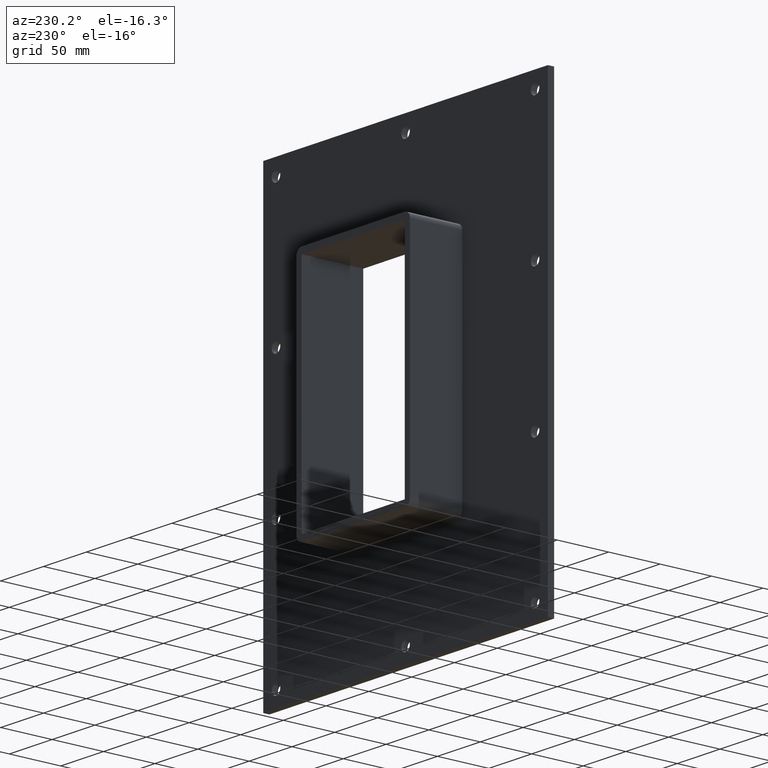
[diagram: clean part render]
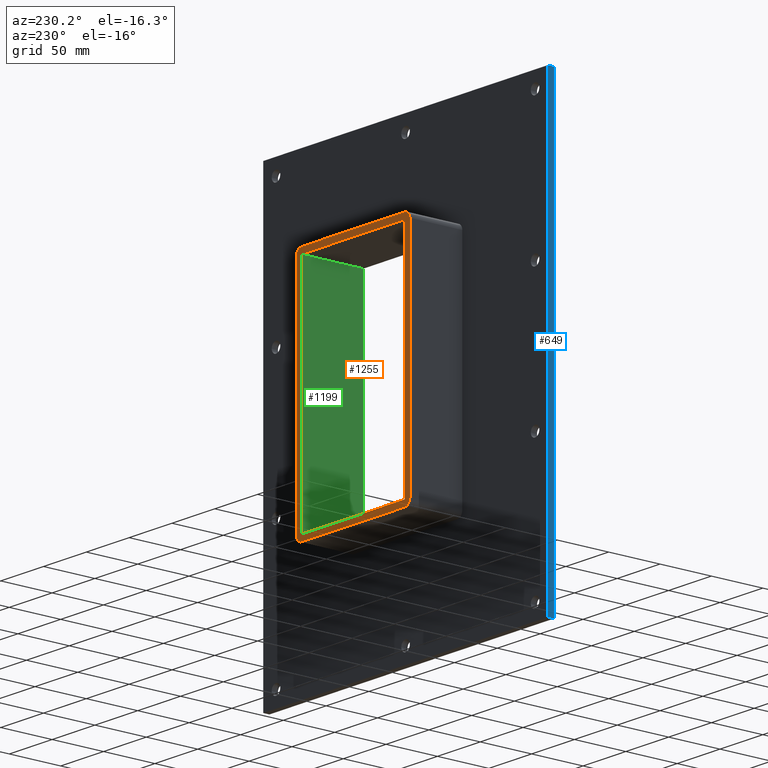
[diagram: same view with three faces highlighted in distinct colors, each labeled with its STEP entity id]
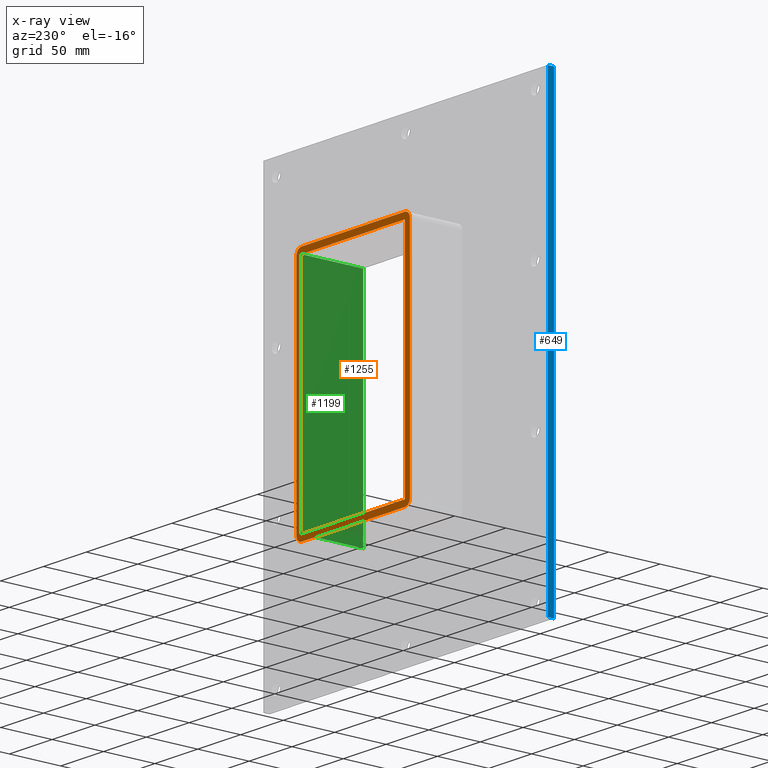
[diagram: x-ray of the same camera — body ghosted, the three highlighted faces saturated]
A machine part, auxiliary view with three faces highlighted in distinct colors.
The next image is the same camera in x-ray (body ghosted, the three faces saturated) — at least one of them is partly hidden behind the body in this view.
Their STEP definitions:

[orange] entity #1255 — the highlighted planar face has unit normal (0, 1, 0).
#703=CARTESIAN_POINT('',(-60.25,57.0,-108.99999999999999));
#704=VERTEX_POINT('',#703);
#711=CARTESIAN_POINT('',(-60.25,57.0,108.99999999999999));
#712=VERTEX_POINT('',#711);
#713=CARTESIAN_POINT('',(-60.25,57.0,108.99999999999997));
#714=DIRECTION('',(0.0,0.0,-1.0));
#715=VECTOR('',#714,217.99999999999994);
#716=LINE('',#713,#715);
#717=EDGE_CURVE('',#712,#704,#716,.T.);
#774=CARTESIAN_POINT('',(66.25,57.0,108.99999999999999));
#775=VERTEX_POINT('',#774);
#782=CARTESIAN_POINT('',(60.25,57.0,114.99999999999999));
#783=VERTEX_POINT('',#782);
#784=CARTESIAN_POINT('',(60.25,57.0,108.99999999999999));
#785=DIRECTION('',(0.0,-1.0,0.0));
#786=DIRECTION('',(0.707106781186546,0.0,0.707106781186549));
#787=AXIS2_PLACEMENT_3D('',#784,#785,#786);
#788=CIRCLE('',#787,6.000000000000001);
#789=EDGE_CURVE('',#775,#783,#788,.T.);
#830=CARTESIAN_POINT('',(66.25,57.0,-109.0));
#831=VERTEX_POINT('',#830);
#838=CARTESIAN_POINT('',(66.25,57.0,108.99999999999999));
#839=DIRECTION('',(0.0,0.0,-1.0));
#840=VECTOR('',#839,218.0);
#841=LINE('',#838,#840);
#842=EDGE_CURVE('',#775,#831,#841,.T.);
#903=CARTESIAN_POINT('',(60.25,57.0,-115.00000000000001));
#904=VERTEX_POINT('',#903);
#911=CARTESIAN_POINT('',(60.25,57.0,-109.00000000000003));
#912=DIRECTION('',(0.0,-1.0,0.0));
#913=DIRECTION('',(0.707106781186546,0.0,-0.707106781186549));
#914=AXIS2_PLACEMENT_3D('',#911,#912,#913);
#915=CIRCLE('',#914,6.000000000000001);
#916=EDGE_CURVE('',#904,#831,#915,.T.);
#977=CARTESIAN_POINT('',(-60.25,57.0,-115.00000000000001));
#978=VERTEX_POINT('',#977);
#985=CARTESIAN_POINT('',(60.25,57.0,-115.00000000000001));
#986=DIRECTION('',(-1.0,0.0,0.0));
#987=VECTOR('',#986,120.5);
#988=LINE('',#985,#987);
#989=EDGE_CURVE('',#904,#978,#988,.T.);
#1084=CARTESIAN_POINT('',(-66.25,57.0,-109.00000000000003));
#1085=VERTEX_POINT('',#1084);
#1092=CARTESIAN_POINT('',(-60.25,57.0,-109.00000000000003));
#1093=DIRECTION('',(0.0,-1.0,0.0));
#1094=DIRECTION('',(-0.707106781186546,0.0,-0.707106781186549));
#1095=AXIS2_PLACEMENT_3D('',#1092,#1093,#1094);
#1096=CIRCLE('',#1095,6.000000000000001);
#1097=EDGE_CURVE('',#1085,#978,#1096,.T.);
#1109=CARTESIAN_POINT('',(-66.25,57.0,108.99999999999997));
#1110=VERTEX_POINT('',#1109);
#1117=CARTESIAN_POINT('',(-66.25,57.0,-109.00000000000001));
#1118=DIRECTION('',(0.0,0.0,1.0));
#1119=VECTOR('',#1118,218.0);
#1120=LINE('',#1117,#1119);
#1121=EDGE_CURVE('',#1085,#1110,#1120,.T.);
#1133=CARTESIAN_POINT('',(-60.25,57.0,114.99999999999999));
#1134=VERTEX_POINT('',#1133);
#1141=CARTESIAN_POINT('',(-60.25,57.0,108.99999999999999));
#1142=DIRECTION('',(0.0,-1.0,0.0));
#1143=DIRECTION('',(-0.707106781186546,0.0,0.707106781186549));
#1144=AXIS2_PLACEMENT_3D('',#1141,#1142,#1143);
#1145=CIRCLE('',#1144,6.000000000000001);
#1146=EDGE_CURVE('',#1134,#1110,#1145,.T.);
#1159=CARTESIAN_POINT('',(-60.25,57.0,114.99999999999999));
#1160=DIRECTION('',(1.0,0.0,0.0));
#1161=VECTOR('',#1160,120.5);
#1162=LINE('',#1159,#1161);
#1163=EDGE_CURVE('',#1134,#783,#1162,.T.);
#1174=CARTESIAN_POINT('',(60.25,57.0,-108.99999999999999));
#1175=VERTEX_POINT('',#1174);
#1183=CARTESIAN_POINT('',(60.25,57.0,108.99999999999999));
#1184=VERTEX_POINT('',#1183);
#1191=CARTESIAN_POINT('',(60.25,57.0,-108.99999999999999));
#1192=DIRECTION('',(0.0,0.0,1.0));
#1193=VECTOR('',#1192,217.99999999999997);
#1194=LINE('',#1191,#1193);
#1195=EDGE_CURVE('',#1175,#1184,#1194,.T.);
#1206=CARTESIAN_POINT('',(60.250000000000014,57.0,108.99999999999999));
#1207=DIRECTION('',(-1.0,0.0,0.0));
#1208=VECTOR('',#1207,120.50000000000001);
#1209=LINE('',#1206,#1208);
#1210=EDGE_CURVE('',#1184,#712,#1209,.T.);
#1225=CARTESIAN_POINT('',(-60.250000000000014,57.0,-108.99999999999999));
#1226=DIRECTION('',(1.0,0.0,0.0));
#1227=VECTOR('',#1226,120.50000000000001);
#1228=LINE('',#1225,#1227);
#1229=EDGE_CURVE('',#704,#1175,#1228,.T.);
#1234=CARTESIAN_POINT('',(0.0,57.0,-2.058124E-014));
#1235=DIRECTION('',(0.0,1.0,0.0));
#1236=DIRECTION('',(0.0,0.0,1.0));
#1237=AXIS2_PLACEMENT_3D('',#1234,#1235,#1236);
#1238=PLANE('',#1237);
#1239=ORIENTED_EDGE('',*,*,#916,.F.);
#1240=ORIENTED_EDGE('',*,*,#989,.T.);
#1241=ORIENTED_EDGE('',*,*,#1097,.F.);
#1242=ORIENTED_EDGE('',*,*,#1121,.T.);
#1243=ORIENTED_EDGE('',*,*,#1146,.F.);
#1244=ORIENTED_EDGE('',*,*,#1163,.T.);
#1245=ORIENTED_EDGE('',*,*,#789,.F.);
#1246=ORIENTED_EDGE('',*,*,#842,.T.);
#1247=EDGE_LOOP('',(#1239,#1240,#1241,#1242,#1243,#1244,#1245,#1246));
#1248=FACE_OUTER_BOUND('',#1247,.T.);
#1249=ORIENTED_EDGE('',*,*,#1195,.T.);
#1250=ORIENTED_EDGE('',*,*,#1210,.T.);
#1251=ORIENTED_EDGE('',*,*,#717,.T.);
#1252=ORIENTED_EDGE('',*,*,#1229,.T.);
#1253=EDGE_LOOP('',(#1249,#1250,#1251,#1252));
#1254=FACE_BOUND('',#1253,.T.);
#1255=ADVANCED_FACE('',(#1248,#1254),#1238,.T.);

[blue] entity #649 — the highlighted planar face has unit normal (-1, 0, 0).
#353=CARTESIAN_POINT('',(-166.25,6.000000000000001,215.0));
#354=VERTEX_POINT('',#353);
#371=CARTESIAN_POINT('',(-166.25,6.000000000000001,-214.99999999999994));
#372=VERTEX_POINT('',#371);
#379=CARTESIAN_POINT('',(-166.25,6.000000000000001,-214.99999999999994));
#380=DIRECTION('',(0.0,0.0,1.0));
#381=VECTOR('',#380,429.99999999999994);
#382=LINE('',#379,#381);
#383=EDGE_CURVE('',#372,#354,#382,.T.);
#493=CARTESIAN_POINT('',(-166.25,0.0,215.0));
#494=VERTEX_POINT('',#493);
#503=CARTESIAN_POINT('',(-166.25,0.0,-214.99999999999994));
#504=VERTEX_POINT('',#503);
#505=CARTESIAN_POINT('',(-166.25,0.0,-214.99999999999994));
#506=DIRECTION('',(0.0,0.0,1.0));
#507=VECTOR('',#506,429.99999999999994);
#508=LINE('',#505,#507);
#509=EDGE_CURVE('',#504,#494,#508,.T.);
#628=CARTESIAN_POINT('',(-166.25,0.0,-214.99999999999994));
#629=DIRECTION('',(-1.0,0.0,0.0));
#630=DIRECTION('',(0.0,0.0,1.0));
#631=AXIS2_PLACEMENT_3D('',#628,#629,#630);
#632=PLANE('',#631);
#633=ORIENTED_EDGE('',*,*,#509,.T.);
#634=CARTESIAN_POINT('',(-166.25,0.0,215.0));
#635=DIRECTION('',(0.0,1.0,0.0));
#636=VECTOR('',#635,6.000000000000001);
#637=LINE('',#634,#636);
#638=EDGE_CURVE('',#494,#354,#637,.T.);
#639=ORIENTED_EDGE('',*,*,#638,.T.);
#640=ORIENTED_EDGE('',*,*,#383,.F.);
#641=CARTESIAN_POINT('',(-166.25,0.0,-214.99999999999994));
#642=DIRECTION('',(0.0,1.0,0.0));
#643=VECTOR('',#642,6.000000000000001);
#644=LINE('',#641,#643);
#645=EDGE_CURVE('',#504,#372,#644,.T.);
#646=ORIENTED_EDGE('',*,*,#645,.F.);
#647=EDGE_LOOP('',(#633,#639,#640,#646));
#648=FACE_OUTER_BOUND('',#647,.T.);
#649=ADVANCED_FACE('',(#648),#632,.T.);

[green] entity #1199 — the highlighted planar face has unit normal (1, 0, 0).
#1052=CARTESIAN_POINT('',(60.25,-3.0,108.99999999999999));
#1053=VERTEX_POINT('',#1052);
#1054=CARTESIAN_POINT('',(60.25,-3.0,-108.99999999999999));
#1055=VERTEX_POINT('',#1054);
#1056=CARTESIAN_POINT('',(60.25,-3.0,108.99999999999999));
#1057=DIRECTION('',(0.0,0.0,-1.0));
#1058=VECTOR('',#1057,217.99999999999997);
#1059=LINE('',#1056,#1058);
#1060=EDGE_CURVE('',#1053,#1055,#1059,.T.);
#1169=CARTESIAN_POINT('',(60.25,0.0,108.99999999999999));
#1170=DIRECTION('',(1.0,0.0,0.0));
#1171=DIRECTION('',(0.0,0.0,-1.0));
#1172=AXIS2_PLACEMENT_3D('',#1169,#1170,#1171);
#1173=PLANE('',#1172);
#1174=CARTESIAN_POINT('',(60.25,57.0,-108.99999999999999));
#1175=VERTEX_POINT('',#1174);
#1176=CARTESIAN_POINT('',(60.25,56.999999999999993,-108.99999999999999));
#1177=DIRECTION('',(0.0,-1.0,0.0));
#1178=VECTOR('',#1177,59.999999999999993);
#1179=LINE('',#1176,#1178);
#1180=EDGE_CURVE('',#1175,#1055,#1179,.T.);
#1181=ORIENTED_EDGE('',*,*,#1180,.T.);
#1182=ORIENTED_EDGE('',*,*,#1060,.F.);
#1183=CARTESIAN_POINT('',(60.25,57.0,108.99999999999999));
#1184=VERTEX_POINT('',#1183);
#1185=CARTESIAN_POINT('',(60.25,-3.0,108.99999999999999));
#1186=DIRECTION('',(0.0,1.0,0.0));
#1187=VECTOR('',#1186,60.0);
#1188=LINE('',#1185,#1187);
#1189=EDGE_CURVE('',#1053,#1184,#1188,.T.);
#1190=ORIENTED_EDGE('',*,*,#1189,.T.);
#1191=CARTESIAN_POINT('',(60.25,57.0,-108.99999999999999));
#1192=DIRECTION('',(0.0,0.0,1.0));
#1193=VECTOR('',#1192,217.99999999999997);
#1194=LINE('',#1191,#1193);
#1195=EDGE_CURVE('',#1175,#1184,#1194,.T.);
#1196=ORIENTED_EDGE('',*,*,#1195,.F.);
#1197=EDGE_LOOP('',(#1181,#1182,#1190,#1196));
#1198=FACE_OUTER_BOUND('',#1197,.T.);
#1199=ADVANCED_FACE('',(#1198),#1173,.F.);